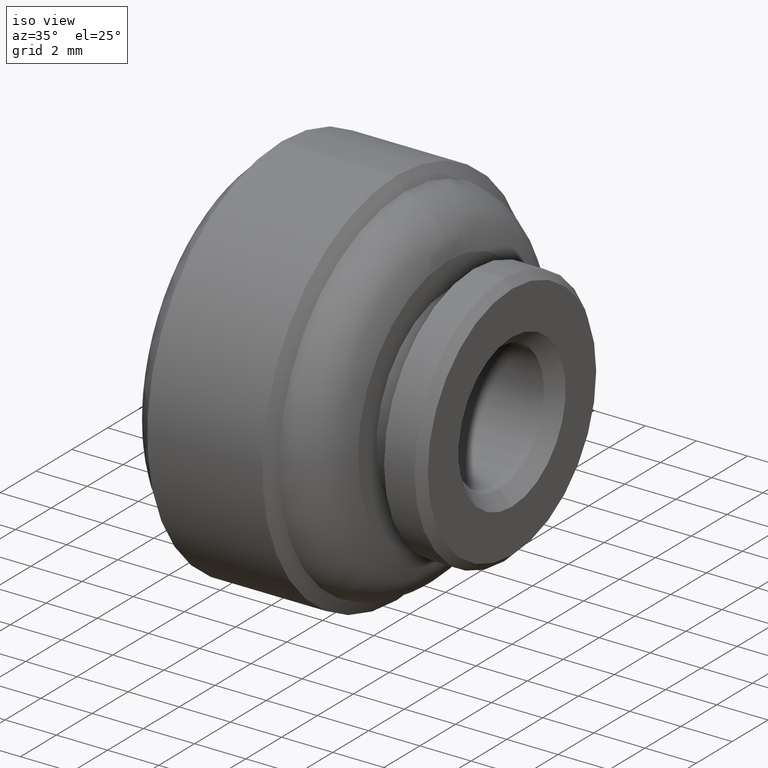
[diagram: clean part render]
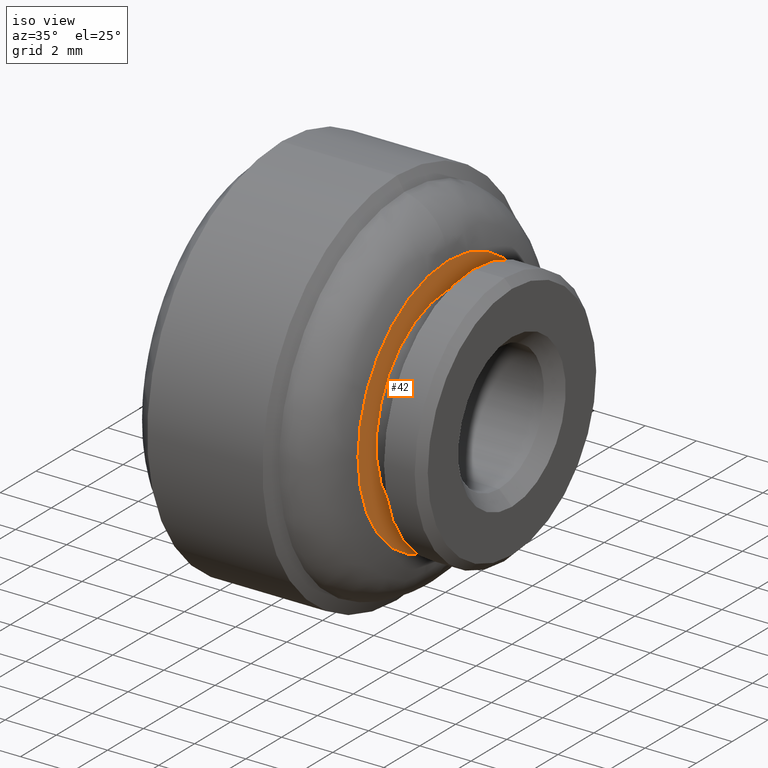
[diagram: same view with one face highlighted and labeled with its STEP entity id]
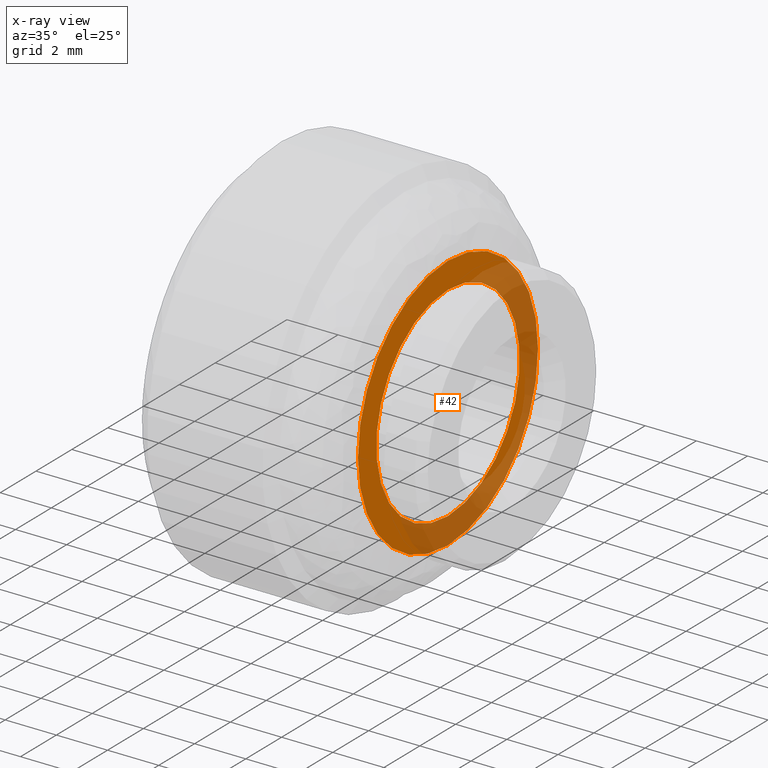
[diagram: x-ray of the same camera — body ghosted, the highlighted face saturated]
A machine part, iso view. The second image highlights one B-rep face of the part: STEP entity #42.
The next image is the same camera in x-ray: the body ghosted, the highlighted face saturated — about 43% of this face is hidden behind the body in this view.
In plain terms, the highlighted planar face has unit normal (-1, 0, 0).
Its self-contained STEP definition (entity closure, byte-faithful):
#42=ADVANCED_FACE('',(#93,#94),#92,.F.);
#92=PLANE('',#388);
#93=FACE_OUTER_BOUND('',#389,.T.);
#94=FACE_BOUND('',#390,.T.);
#385=CARTESIAN_POINT('',(-2.50000000000E+00,-1.04394859094E+01,-1.15522100000E+01));
#386=DIRECTION('',(-1.00000000000E+00,0.00000000000E+00,0.00000000000E+00));
#387=DIRECTION('',(0.00000000000E+00,0.00000000000E+00,1.00000000000E+00));
#388=AXIS2_PLACEMENT_3D('',#385,#386,#387);
#389=EDGE_LOOP('',(#690,#691));
#390=EDGE_LOOP('',(#692,#693));
#690=ORIENTED_EDGE('',*,*,#806,.F.);
#691=ORIENTED_EDGE('',*,*,#807,.F.);
#692=ORIENTED_EDGE('',*,*,#808,.T.);
#693=ORIENTED_EDGE('',*,*,#809,.T.);
#806=EDGE_CURVE('',#912,#913,#914,.T.);
#807=EDGE_CURVE('',#913,#912,#920,.T.);
#808=EDGE_CURVE('',#926,#927,#928,.T.);
#809=EDGE_CURVE('',#927,#926,#934,.T.);
#912=VERTEX_POINT('',#1277);
#913=VERTEX_POINT('',#1278);
#914=CIRCLE('',#1282,5.02270000000E+00);
#920=CIRCLE('',#1286,5.02270000000E+00);
#926=VERTEX_POINT('',#1287);
#927=VERTEX_POINT('',#1288);
#928=CIRCLE('',#1292,4.00000000000E+00);
#934=CIRCLE('',#1296,4.00000000000E+00);
#1277=CARTESIAN_POINT('',(-2.50000000000E+00,0.00000000000E+00,-5.02270000000E+00));
#1278=CARTESIAN_POINT('',(-2.50000000000E+00,0.00000000000E+00,5.02270000000E+00));
#1279=CARTESIAN_POINT('',(-2.50000000000E+00,0.00000000000E+00,0.00000000000E+00));
#1280=DIRECTION('',(-1.00000000000E+00,0.00000000000E+00,0.00000000000E+00));
#1281=DIRECTION('',(0.00000000000E+00,-1.22460635382E-16,1.00000000000E+00));
#1282=AXIS2_PLACEMENT_3D('',#1279,#1280,#1281);
#1283=CARTESIAN_POINT('',(-2.50000000000E+00,0.00000000000E+00,0.00000000000E+00));
#1284=DIRECTION('',(-1.00000000000E+00,0.00000000000E+00,0.00000000000E+00));
#1285=DIRECTION('',(0.00000000000E+00,-1.22460635382E-16,1.00000000000E+00));
#1286=AXIS2_PLACEMENT_3D('',#1283,#1284,#1285);
#1287=CARTESIAN_POINT('',(-2.50000000000E+00,0.00000000000E+00,4.00000000000E+00));
#1288=CARTESIAN_POINT('',(-2.50000000000E+00,4.44089209850E-16,-4.00000000000E+00));
#1289=CARTESIAN_POINT('',(-2.50000000000E+00,0.00000000000E+00,0.00000000000E+00));
#1290=DIRECTION('',(-1.00000000000E+00,0.00000000000E+00,0.00000000000E+00));
#1291=DIRECTION('',(0.00000000000E+00,-1.22460635382E-16,1.00000000000E+00));
#1292=AXIS2_PLACEMENT_3D('',#1289,#1290,#1291);
#1293=CARTESIAN_POINT('',(-2.50000000000E+00,0.00000000000E+00,0.00000000000E+00));
#1294=DIRECTION('',(-1.00000000000E+00,0.00000000000E+00,0.00000000000E+00));
#1295=DIRECTION('',(0.00000000000E+00,-1.22460635382E-16,1.00000000000E+00));
#1296=AXIS2_PLACEMENT_3D('',#1293,#1294,#1295);